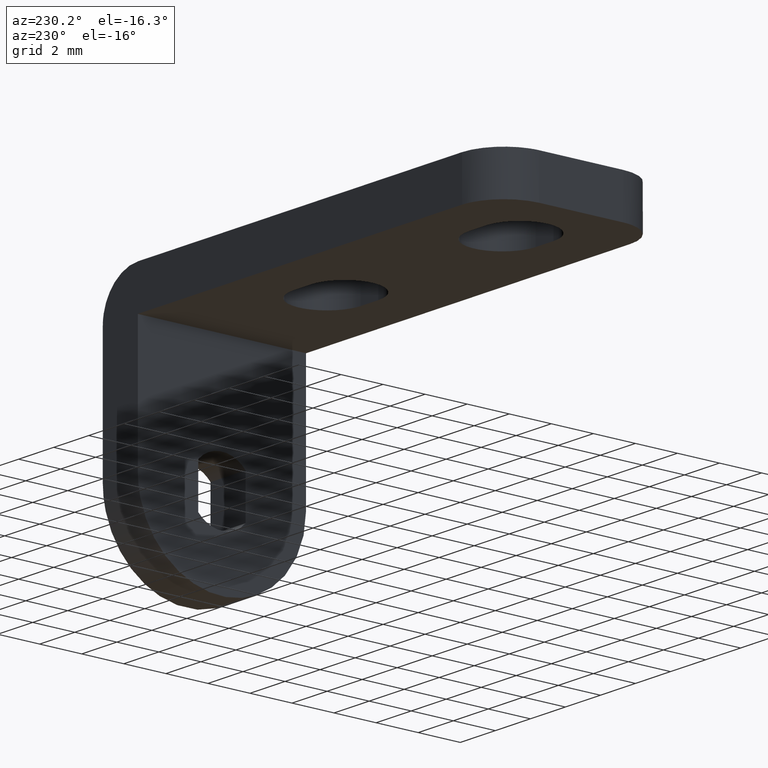
[diagram: clean part render]
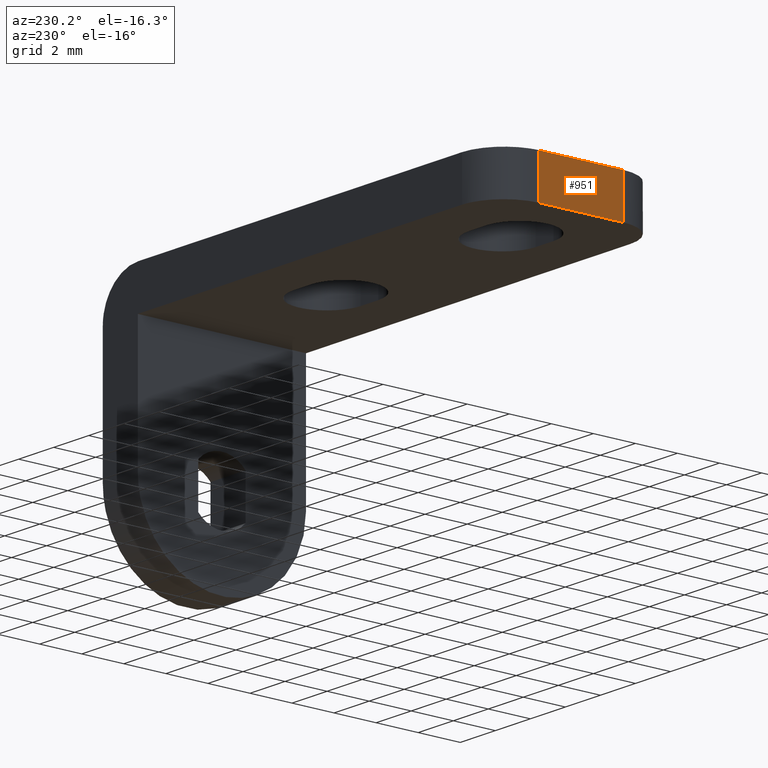
[diagram: same view with one face highlighted and labeled with its STEP entity id]
A machine part, auxiliary view. The second image highlights one B-rep face of the part: STEP entity #951.
In plain terms, the highlighted face is a freeform B-spline surface patch.
Its self-contained STEP definition (entity closure, byte-faithful):
#316=CARTESIAN_POINT('',(-22.500000000000000,-1.999999999999885,6.000008000000210));
#317=VERTEX_POINT('',#316);
#331=CARTESIAN_POINT('',(-22.500000000000000,2.0,6.000008000000210));
#332=VERTEX_POINT('',#331);
#333=CARTESIAN_POINT('',(-22.500000000000000,2.0,6.000008000000210));
#334=CARTESIAN_POINT('',(-22.500000000000000,-1.999999999999885,6.000008000000210));
#335=QUASI_UNIFORM_CURVE('',1,(#333,#334),.UNSPECIFIED.,.F.,.U.);
#336=EDGE_CURVE('',#332,#317,#335,.T.);
#508=CARTESIAN_POINT('',(-22.500000000000000,2.0,8.000008000000209));
#509=VERTEX_POINT('',#508);
#510=CARTESIAN_POINT('',(-22.500000000000000,2.0,8.000008000000209));
#511=CARTESIAN_POINT('',(-22.500000000000000,2.0,6.000008000000210));
#512=QUASI_UNIFORM_CURVE('',1,(#510,#511),.UNSPECIFIED.,.F.,.U.);
#513=EDGE_CURVE('',#509,#332,#512,.T.);
#552=CARTESIAN_POINT('',(-22.500000000000000,-1.999999999999885,8.000008000000209));
#553=VERTEX_POINT('',#552);
#569=CARTESIAN_POINT('',(-22.500000000000000,-1.999999999999885,6.000008000000210));
#570=CARTESIAN_POINT('',(-22.500000000000000,-1.999999999999885,8.000008000000209));
#571=QUASI_UNIFORM_CURVE('',1,(#569,#570),.UNSPECIFIED.,.F.,.U.);
#572=EDGE_CURVE('',#317,#553,#571,.T.);
#936=CARTESIAN_POINT('',(-22.500000000000000,-2.199799992247104,8.099907996123822));
#937=CARTESIAN_POINT('',(-22.500000000000000,2.199800099535578,8.099907996123822));
#938=CARTESIAN_POINT('',(-22.500000000000000,-2.199799992247104,5.900107950232417));
#939=CARTESIAN_POINT('',(-22.500000000000000,2.199800099535578,5.900107950232417));
#940=B_SPLINE_SURFACE_WITH_KNOTS('',1,1,((#936,#938),(#937,#939)),.UNSPECIFIED.,.F.,.F.,.U.,(2,2),(2,2),(0.0,4.399600091782682),(0.0,2.199800045891405),.UNSPECIFIED.);
#941=ORIENTED_EDGE('',*,*,#336,.T.);
#942=ORIENTED_EDGE('',*,*,#572,.T.);
#943=CARTESIAN_POINT('',(-22.500000000000000,2.0,8.000008000000209));
#944=CARTESIAN_POINT('',(-22.500000000000000,-1.999999999999885,8.000008000000209));
#945=QUASI_UNIFORM_CURVE('',1,(#943,#944),.UNSPECIFIED.,.F.,.U.);
#946=EDGE_CURVE('',#509,#553,#945,.T.);
#947=ORIENTED_EDGE('',*,*,#946,.F.);
#948=ORIENTED_EDGE('',*,*,#513,.T.);
#949=EDGE_LOOP('',(#941,#942,#947,#948));
#950=FACE_OUTER_BOUND('',#949,.T.);
#951=ADVANCED_FACE('',(#950),#940,.T.);